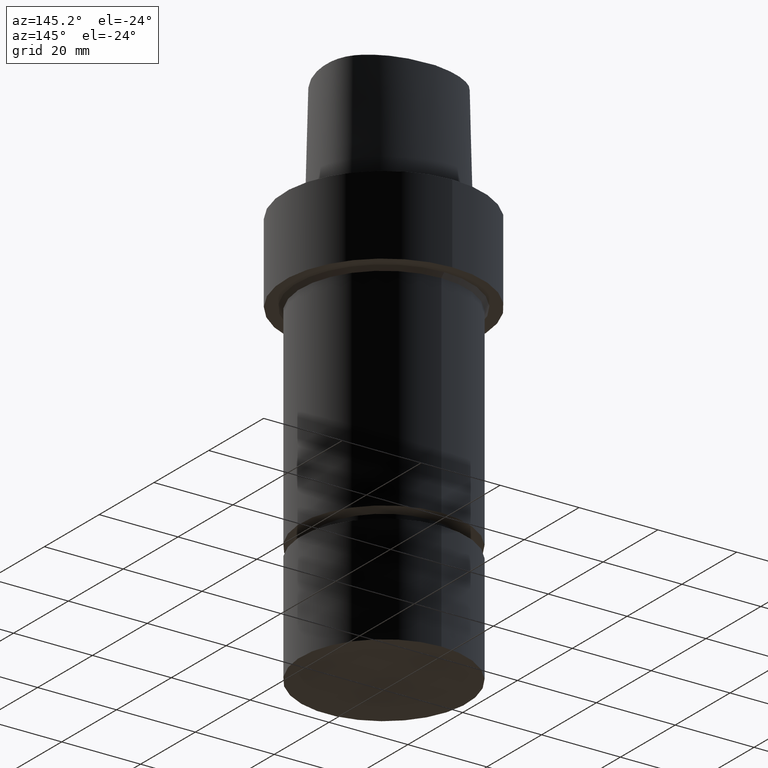
[diagram: clean part render]
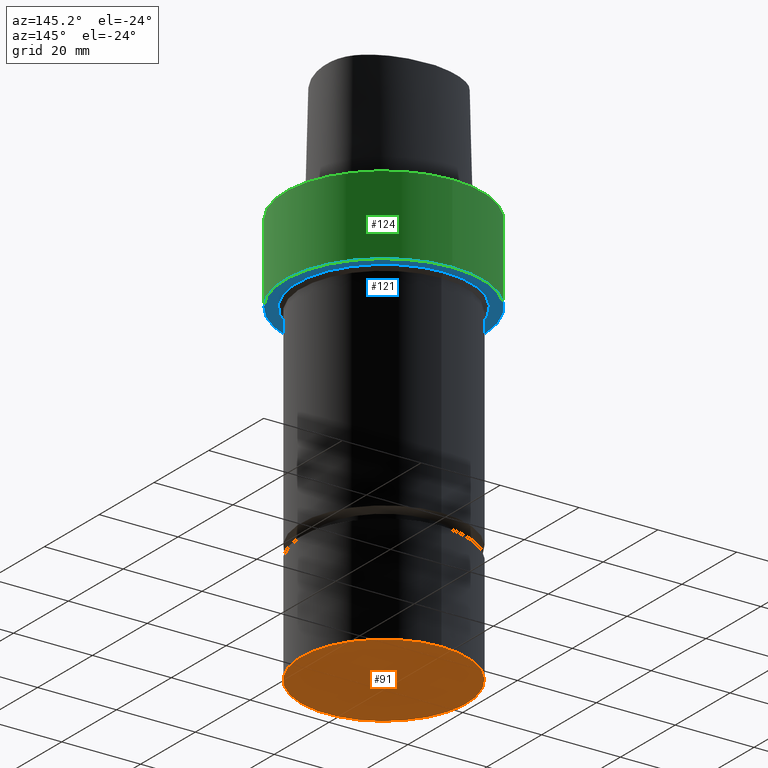
[diagram: same view with three faces highlighted in distinct colors, each labeled with its STEP entity id]
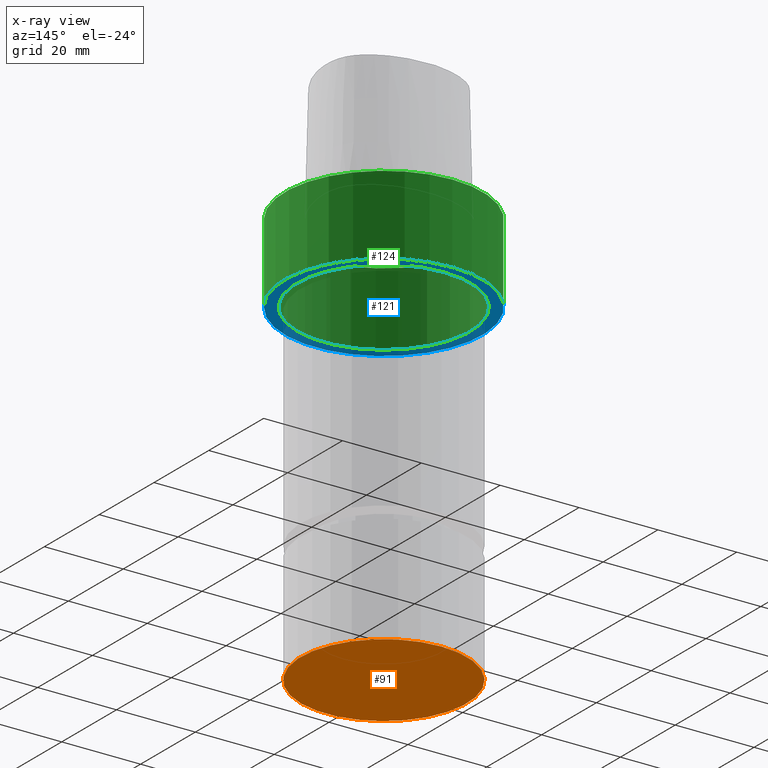
[diagram: x-ray of the same camera — body ghosted, the three highlighted faces saturated]
A machine part, auxiliary view with three faces highlighted in distinct colors.
The next image is the same camera in x-ray (body ghosted, the three faces saturated) — at least one of them is partly hidden behind the body in this view.
Their STEP definitions:

[orange] entity #91 — the highlighted planar face has unit normal (0, 0, -1).
#91=ADVANCED_FACE('Unnamed[1]',(#205),#206,.T.);
#107=EDGE_CURVE('Unnamed[1]',#229,#229,#230,.T.);
#205=FACE_OUTER_BOUND('',#445,.T.);
#206=PLANE('',#446);
#229=VERTEX_POINT('',#476);
#230=CIRCLE('',#477,21.0);
#445=EDGE_LOOP('',(#1026));
#446=AXIS2_PLACEMENT_3D('',#1027,#1028,#1029);
#476=CARTESIAN_POINT('',(6.4293956955236E-015,21.0,-105.0));
#477=AXIS2_PLACEMENT_3D('',#1053,#1054,#1055);
#1026=ORIENTED_EDGE('',*,*,#107,.T.);
#1027=CARTESIAN_POINT('',(6.4293956955236E-015,10.5,-105.0));
#1028=DIRECTION('',(6.12323399573677E-017,1.22464679914735E-016,-1.0));
#1029=DIRECTION('',(-1.23259516440783E-032,1.0,1.22464679914735E-016));
#1053=CARTESIAN_POINT('',(6.4293956955236E-015,1.28587913910472E-014,-105.0));
#1054=DIRECTION('',(6.12323399573677E-017,1.22464679914735E-016,-1.0));
#1055=DIRECTION('',(-1.23259516440783E-032,1.0,1.22464679914735E-016));

[blue] entity #121 — the highlighted planar face has unit normal (0, 0, -1).
#77=EDGE_CURVE('Unnamed[1]',#186,#186,#187,.T.);
#121=ADVANCED_FACE('Unnamed[1]',(#249,#250),#251,.T.);
#131=EDGE_CURVE('Unnamed[1]',#266,#266,#267,.T.);
#186=VERTEX_POINT('',#327);
#187=CIRCLE('',#328,25.0);
#249=FACE_BOUND('',#500,.T.);
#250=FACE_OUTER_BOUND('',#501,.T.);
#251=PLANE('',#502);
#266=VERTEX_POINT('',#524);
#267=CIRCLE('',#525,22.0000000000003);
#327=CARTESIAN_POINT('',(1.22464679914735E-015,25.0,-20.0));
#328=AXIS2_PLACEMENT_3D('',#1010,#1011,#1012);
#500=EDGE_LOOP('',(#1073));
#501=EDGE_LOOP('',(#1074));
#502=AXIS2_PLACEMENT_3D('',#1075,#1076,#1077);
#524=CARTESIAN_POINT('',(1.22464679914735E-015,22.0000000000003,-20.0));
#525=AXIS2_PLACEMENT_3D('',#1090,#1091,#1092);
#1010=CARTESIAN_POINT('',(1.22464679914735E-015,2.44929359829471E-015,-20.0));
#1011=DIRECTION('',(6.12323399573677E-017,1.22464679914735E-016,-1.0));
#1012=DIRECTION('',(-1.23259516440783E-032,1.0,1.22464679914735E-016));
#1073=ORIENTED_EDGE('',*,*,#131,.F.);
#1074=ORIENTED_EDGE('',*,*,#77,.T.);
#1075=CARTESIAN_POINT('',(1.22464679914735E-015,23.5000000000002,-20.0));
#1076=DIRECTION('',(6.12323399573677E-017,1.22464679914735E-016,-1.0));
#1077=DIRECTION('',(-1.23259516440783E-032,1.0,1.22464679914735E-016));
#1090=CARTESIAN_POINT('',(1.22464679914735E-015,2.44929359829471E-015,-20.0));
#1091=DIRECTION('',(6.12323399573677E-017,1.22464679914735E-016,-1.0));
#1092=DIRECTION('',(-1.23259516440783E-032,1.0,1.22464679914735E-016));

[green] entity #124 — the highlighted cylindrical surface (bore or boss wall) has radius 25 mm, axis along (0, 0, -1).
#77=EDGE_CURVE('Unnamed[1]',#186,#186,#187,.T.);
#100=EDGE_CURVE('Unnamed[1]',#218,#218,#219,.T.);
#124=ADVANCED_FACE('Unnamed[1]',(#254,#255),#256,.T.);
#186=VERTEX_POINT('',#327);
#187=CIRCLE('',#328,25.0);
#218=VERTEX_POINT('',#462);
#219=CIRCLE('',#463,25.0);
#254=FACE_BOUND('',#506,.T.);
#255=FACE_BOUND('',#507,.T.);
#256=CYLINDRICAL_SURFACE('',#508,25.0);
#327=CARTESIAN_POINT('',(1.22464679914735E-015,25.0,-20.0));
#328=AXIS2_PLACEMENT_3D('',#1010,#1011,#1012);
#462=CARTESIAN_POINT('',(-3.08148791101958E-031,25.0,3.06161699786838E-015));
#463=AXIS2_PLACEMENT_3D('',#1041,#1042,#1043);
#506=EDGE_LOOP('',(#1079));
#507=EDGE_LOOP('',(#1080));
#508=AXIS2_PLACEMENT_3D('',#1081,#1082,#1083);
#1010=CARTESIAN_POINT('',(1.22464679914735E-015,2.44929359829471E-015,-20.0));
#1011=DIRECTION('',(6.12323399573677E-017,1.22464679914735E-016,-1.0));
#1012=DIRECTION('',(-1.23259516440783E-032,1.0,1.22464679914735E-016));
#1041=CARTESIAN_POINT('',(0.0,0.0,0.0));
#1042=DIRECTION('',(6.12323399573677E-017,1.22464679914735E-016,-1.0));
#1043=DIRECTION('',(-1.23259516440783E-032,1.0,1.22464679914735E-016));
#1079=ORIENTED_EDGE('',*,*,#77,.F.);
#1080=ORIENTED_EDGE('',*,*,#100,.T.);
#1081=CARTESIAN_POINT('',(6.12323399573677E-016,1.22464679914735E-015,-10.0));
#1082=DIRECTION('',(6.12323399573677E-017,1.22464679914735E-016,-1.0));
#1083=DIRECTION('',(-1.23259516440783E-032,1.0,1.22464679914735E-016));